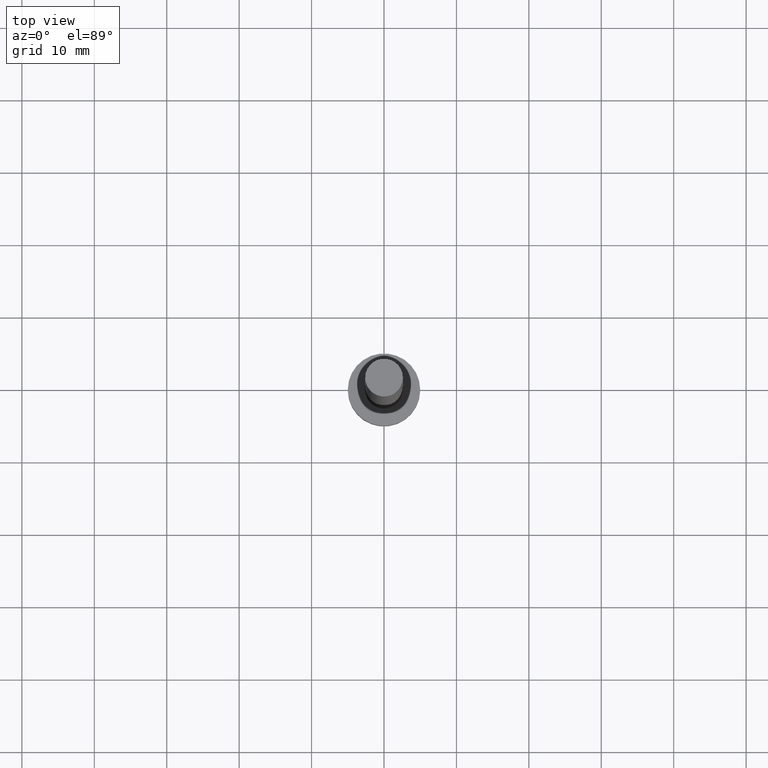
[diagram: clean part render]
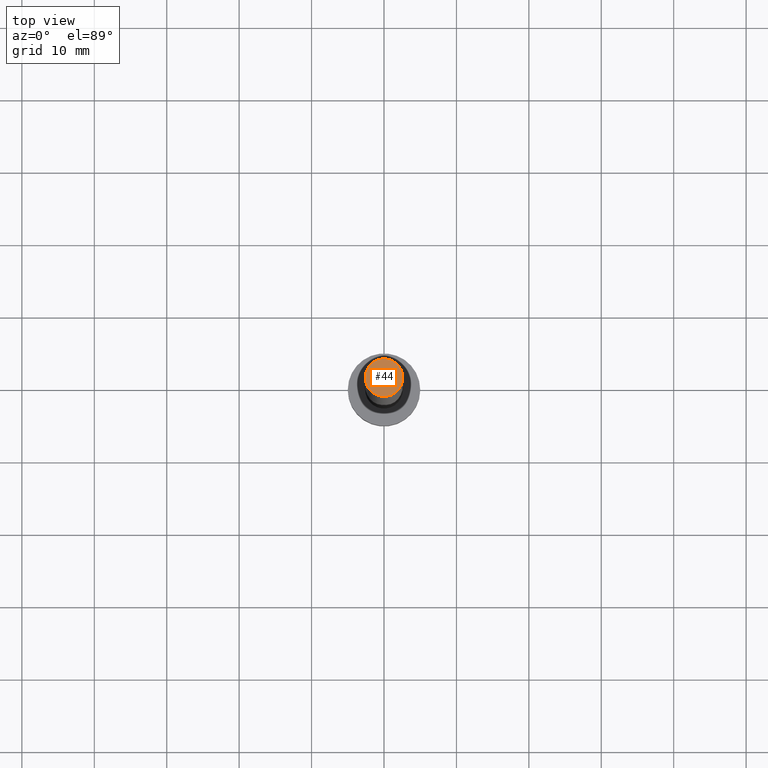
[diagram: same view with one face highlighted and labeled with its STEP entity id]
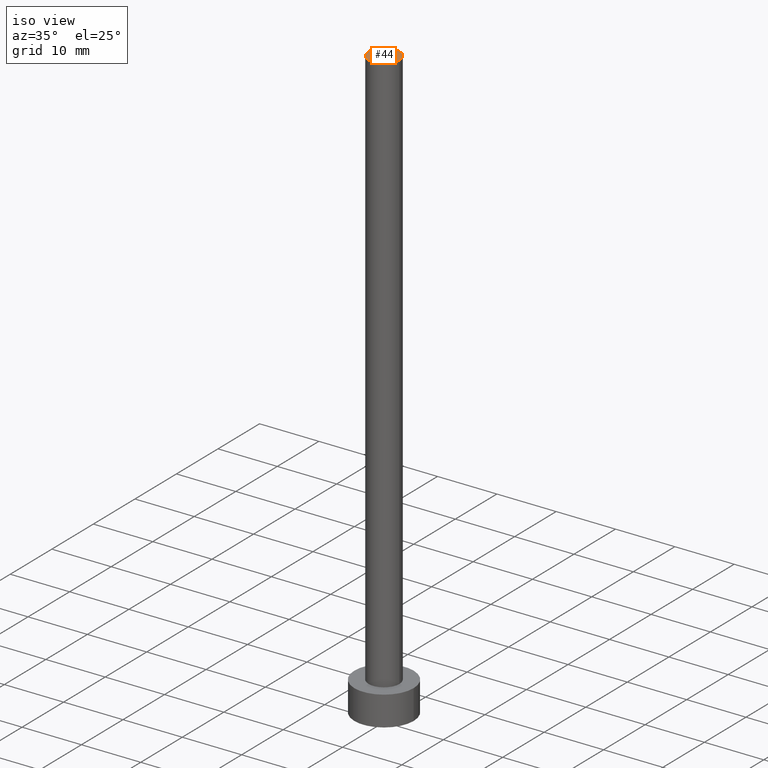
[diagram: same view with one face highlighted and labeled with its STEP entity id]
A machine part, top view. The second image highlights one B-rep face of the part: STEP entity #44.
A second angle (iso view) of the same face is appended — the face is thin or edge-on in the first view.
In plain terms, the highlighted planar face has unit normal (0, 0, 1).
Its self-contained STEP definition (entity closure, byte-faithful):
#3 = FACE_OUTER_BOUND ( 'NONE', #206, .T. ) ;
#25 = AXIS2_PLACEMENT_3D ( 'NONE', #64, #162, #129 ) ;
#29 = DIRECTION ( 'NONE',  ( 0.000000000000000000, 0.000000000000000000, 1.000000000000000000 ) ) ;
#44 = ADVANCED_FACE ( 'NONE', ( #3 ), #207, .T. ) ;
#47 = VERTEX_POINT ( 'NONE', #193 ) ;
#61 = CIRCLE ( 'NONE', #239, 2.600000000000000089 ) ;
#63 = ORIENTED_EDGE ( 'NONE', *, *, #151, .T. ) ;
#64 = CARTESIAN_POINT ( 'NONE',  ( 0.000000000000000000, 0.000000000000000000, 100.0000000000000000 ) ) ;
#68 = DIRECTION ( 'NONE',  ( 1.000000000000000000, 0.000000000000000000, 0.000000000000000000 ) ) ;
#97 = CARTESIAN_POINT ( 'NONE',  ( -2.600000000000000089, 0.000000000000000000, 100.0000000000000000 ) ) ;
#109 = EDGE_CURVE ( 'NONE', #47, #241, #216, .T. ) ;
#129 = DIRECTION ( 'NONE',  ( 1.000000000000000000, 0.000000000000000000, -0.000000000000000000 ) ) ;
#151 = EDGE_CURVE ( 'NONE', #241, #47, #61, .T. ) ;
#162 = DIRECTION ( 'NONE',  ( 0.000000000000000000, 0.000000000000000000, 1.000000000000000000 ) ) ;
#174 = DIRECTION ( 'NONE',  ( 1.000000000000000000, 0.000000000000000000, 0.000000000000000000 ) ) ;
#193 = CARTESIAN_POINT ( 'NONE',  ( 2.600000000000000089, 3.184081677783118191E-16, 100.0000000000000000 ) ) ;
#206 = EDGE_LOOP ( 'NONE', ( #63, #237 ) ) ;
#207 = PLANE ( 'NONE',  #25 ) ;
#211 = CARTESIAN_POINT ( 'NONE',  ( 0.000000000000000000, 0.000000000000000000, 100.0000000000000000 ) ) ;
#213 = CARTESIAN_POINT ( 'NONE',  ( 0.000000000000000000, 0.000000000000000000, 100.0000000000000000 ) ) ;
#216 = CIRCLE ( 'NONE', #253, 2.600000000000000089 ) ;
#230 = DIRECTION ( 'NONE',  ( 0.000000000000000000, 0.000000000000000000, 1.000000000000000000 ) ) ;
#237 = ORIENTED_EDGE ( 'NONE', *, *, #109, .T. ) ;
#239 = AXIS2_PLACEMENT_3D ( 'NONE', #211, #29, #68 ) ;
#241 = VERTEX_POINT ( 'NONE', #97 ) ;
#253 = AXIS2_PLACEMENT_3D ( 'NONE', #213, #230, #174 ) ;